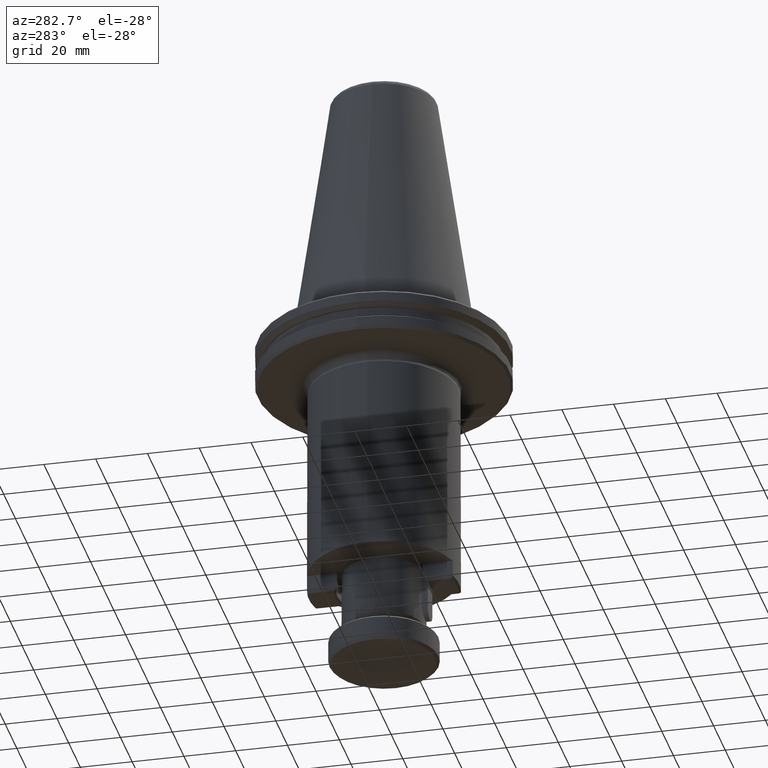
[diagram: clean part render]
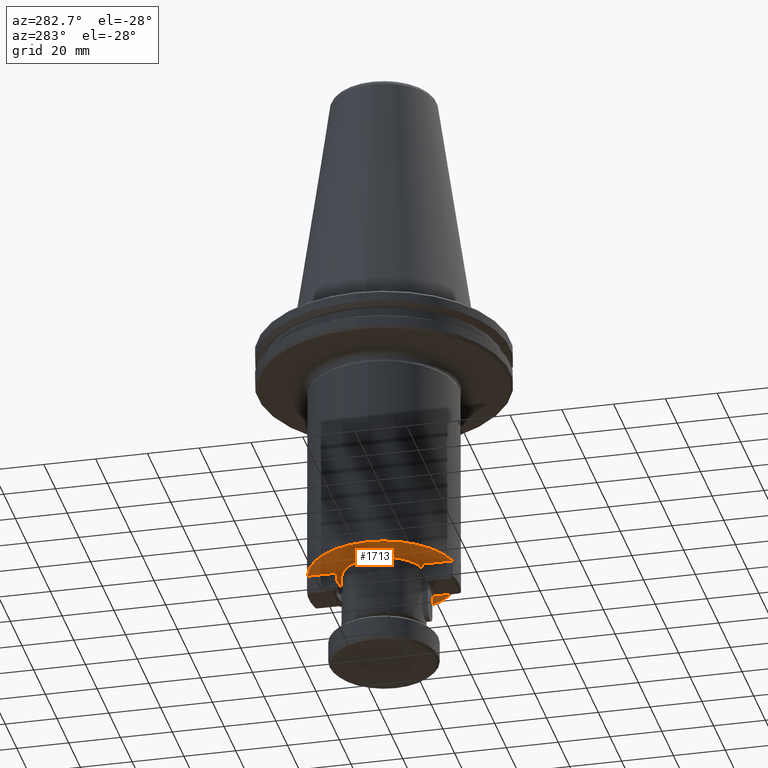
[diagram: same view with one face highlighted and labeled with its STEP entity id]
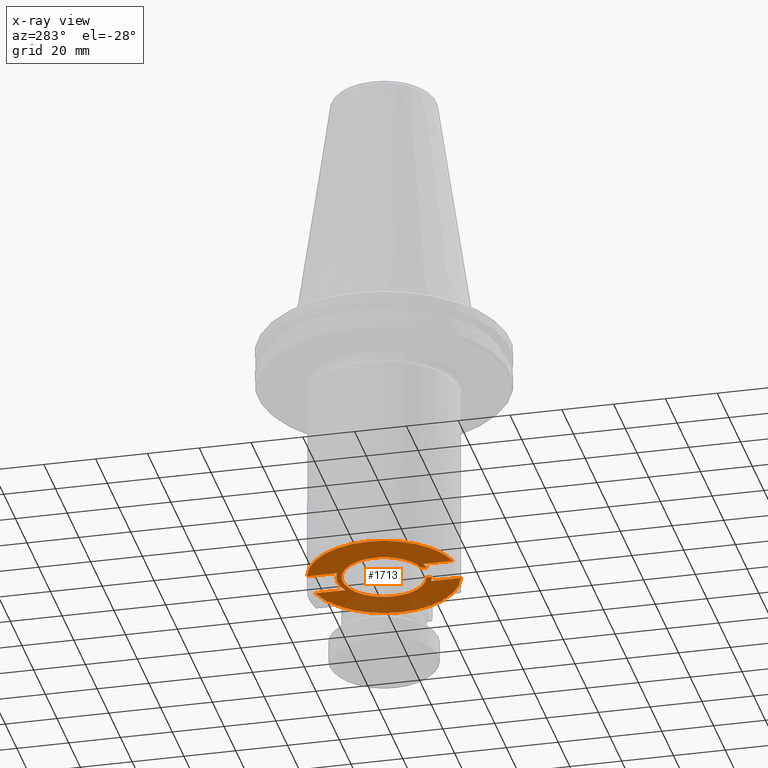
[diagram: x-ray of the same camera — body ghosted, the highlighted face saturated]
A machine part, auxiliary view. The second image highlights one B-rep face of the part: STEP entity #1713.
The next image is the same camera in x-ray: the body ghosted, the highlighted face saturated — about 24% of this face is hidden behind the body in this view.
In plain terms, the highlighted planar face has unit normal (0, -0, 1).
Its self-contained STEP definition (entity closure, byte-faithful):
#12 = AXIS2_PLACEMENT_3D ( 'NONE', #1360, #1717, #1556 ) ;
#69 = AXIS2_PLACEMENT_3D ( 'NONE', #463, #838, #89 ) ;
#89 = DIRECTION ( 'NONE',  ( 1.000000000000000000, 0.0000000000000000000, 0.0000000000000000000 ) ) ;
#121 = CIRCLE ( 'NONE', #12, 18.00000000000000400 ) ;
#129 = CARTESIAN_POINT ( 'NONE',  ( 75.78900745422477300, 111.8872747687010000, -2.000497217484769900 ) ) ;
#132 = CIRCLE ( 'NONE', #972, 16.00000000000000000 ) ;
#145 = CARTESIAN_POINT ( 'NONE',  ( 84.78900745828785500, 83.74478020874980200, -2.000497217484769900 ) ) ;
#154 = CIRCLE ( 'NONE', #545, 18.00000000000000400 ) ;
#253 = CIRCLE ( 'NONE', #1569, 28.99999999999999600 ) ;
#260 = DIRECTION ( 'NONE',  ( 1.000000000000000000, 0.0000000000000000000, 0.0000000000000000000 ) ) ;
#265 = VECTOR ( 'NONE', #943, 1000.000000000000000 ) ;
#290 = ORIENTED_EDGE ( 'NONE', *, *, #2293, .F. ) ;
#301 = LINE ( 'NONE', #1537, #265 ) ;
#302 = DIRECTION ( 'NONE',  ( 0.0000000000000000000, 1.000000000000000000, 0.0000000000000000000 ) ) ;
#338 = DIRECTION ( 'NONE',  ( 0.0000000000000000000, -0.0000000000000000000, 1.000000000000000000 ) ) ;
#342 = CARTESIAN_POINT ( 'NONE',  ( 91.78900745422477300, 111.8872747687010000, -2.000497217484769900 ) ) ;
#353 = EDGE_LOOP ( 'NONE', ( #968, #2484, #1968, #1678, #732, #1777, #290, #1263, #1955, #2087, #1899, #2397, #1708, #767, #1070, #1107 ) ) ;
#355 = EDGE_CURVE ( 'NONE', #853, #1139, #471, .T. ) ;
#391 = VERTEX_POINT ( 'NONE', #1852 ) ;
#405 = CARTESIAN_POINT ( 'NONE',  ( 98.78900745422480200, 111.8872747687010000, -2.000497217484769900 ) ) ;
#430 = CARTESIAN_POINT ( 'NONE',  ( 95.78900745422460300, 94.33734599391671300, -2.000497217484769900 ) ) ;
#445 = VECTOR ( 'NONE', #1718, 1000.000000000000000 ) ;
#463 = CARTESIAN_POINT ( 'NONE',  ( 91.78900745422478700, 111.8872747687010000, -2.000497217484769900 ) ) ;
#471 = CIRCLE ( 'NONE', #1076, 28.99999999999999600 ) ;
#488 = VERTEX_POINT ( 'NONE', #821 ) ;
#494 = CARTESIAN_POINT ( 'NONE',  ( 91.78900745422477300, 111.8872747687010000, -2.000497217484769900 ) ) ;
#522 = LINE ( 'NONE', #1673, #445 ) ;
#525 = CIRCLE ( 'NONE', #2155, 16.00000000000000000 ) ;
#545 = AXIS2_PLACEMENT_3D ( 'NONE', #1688, #1751, #1308 ) ;
#576 = EDGE_CURVE ( 'NONE', #2214, #1632, #301, .T. ) ;
#634 = CARTESIAN_POINT ( 'NONE',  ( 91.78900745422477300, 111.8872747687010000, -2.000497217484769900 ) ) ;
#644 = EDGE_CURVE ( 'NONE', #847, #488, #253, .T. ) ;
#712 = DIRECTION ( 'NONE',  ( -0.0000000000000000000, -0.0000000000000000000, 1.000000000000000000 ) ) ;
#732 = ORIENTED_EDGE ( 'NONE', *, *, #2373, .F. ) ;
#744 = CIRCLE ( 'NONE', #1210, 28.99999999999999600 ) ;
#757 = EDGE_CURVE ( 'NONE', #1632, #2178, #154, .T. ) ;
#767 = ORIENTED_EDGE ( 'NONE', *, *, #576, .F. ) ;
#779 = VECTOR ( 'NONE', #302, 1000.000000000000000 ) ;
#811 = EDGE_CURVE ( 'NONE', #391, #2137, #132, .T. ) ;
#821 = CARTESIAN_POINT ( 'NONE',  ( 98.78900745422480200, 140.0297693276415900, -2.000497217484769900 ) ) ;
#838 = DIRECTION ( 'NONE',  ( -0.0000000000000000000, -0.0000000000000000000, 1.000000000000000000 ) ) ;
#847 = VERTEX_POINT ( 'NONE', #2400 ) ;
#850 = LINE ( 'NONE', #405, #779 ) ;
#853 = VERTEX_POINT ( 'NONE', #1618 ) ;
#924 = DIRECTION ( 'NONE',  ( -0.0000000000000000000, -0.0000000000000000000, 1.000000000000000000 ) ) ;
#934 = DIRECTION ( 'NONE',  ( -0.0000000000000000000, -0.0000000000000000000, 1.000000000000000000 ) ) ;
#943 = DIRECTION ( 'NONE',  ( 0.0000000000000000000, 1.000000000000000000, 0.0000000000000000000 ) ) ;
#946 = CIRCLE ( 'NONE', #69, 18.00000000000000400 ) ;
#955 = CARTESIAN_POINT ( 'NONE',  ( 98.78900745393227100, 128.4703987206014800, -2.000497217484769900 ) ) ;
#961 = CARTESIAN_POINT ( 'NONE',  ( 62.78900745422477300, 111.8872747687010000, -2.000497217484769900 ) ) ;
#968 = ORIENTED_EDGE ( 'NONE', *, *, #2550, .F. ) ;
#972 = AXIS2_PLACEMENT_3D ( 'NONE', #2641, #934, #2576 ) ;
#976 = DIRECTION ( 'NONE',  ( 1.000000000000000000, 0.0000000000000000000, 0.0000000000000000000 ) ) ;
#983 = CARTESIAN_POINT ( 'NONE',  ( 87.78900745422458800, 94.33734599391679900, -2.000497217484769900 ) ) ;
#986 = VECTOR ( 'NONE', #1345, 1000.000000000000000 ) ;
#995 = CARTESIAN_POINT ( 'NONE',  ( 91.78900745422477300, 111.8872747687010000, -2.000497217484769900 ) ) ;
#1013 = LINE ( 'NONE', #1355, #986 ) ;
#1019 = CARTESIAN_POINT ( 'NONE',  ( 84.78900745422478700, 95.30415081635770500, -2.000497217484769900 ) ) ;
#1046 = CIRCLE ( 'NONE', #2203, 16.00000000000000000 ) ;
#1070 = ORIENTED_EDGE ( 'NONE', *, *, #1167, .F. ) ;
#1076 = AXIS2_PLACEMENT_3D ( 'NONE', #1726, #1737, #1783 ) ;
#1107 = ORIENTED_EDGE ( 'NONE', *, *, #355, .F. ) ;
#1132 = VERTEX_POINT ( 'NONE', #955 ) ;
#1139 = VERTEX_POINT ( 'NONE', #961 ) ;
#1159 = DIRECTION ( 'NONE',  ( -0.0000000000000000000, -0.0000000000000000000, 1.000000000000000000 ) ) ;
#1167 = EDGE_CURVE ( 'NONE', #1139, #2214, #2477, .T. ) ;
#1192 = CARTESIAN_POINT ( 'NONE',  ( 87.78900745422458800, 94.08727476870090800, -2.000497217484769900 ) ) ;
#1210 = AXIS2_PLACEMENT_3D ( 'NONE', #1579, #1533, #1425 ) ;
#1227 = VERTEX_POINT ( 'NONE', #2360 ) ;
#1241 = EDGE_CURVE ( 'NONE', #1132, #1227, #121, .T. ) ;
#1263 = ORIENTED_EDGE ( 'NONE', *, *, #1443, .T. ) ;
#1308 = DIRECTION ( 'NONE',  ( 1.000000000000000000, 0.0000000000000000000, 0.0000000000000000000 ) ) ;
#1345 = DIRECTION ( 'NONE',  ( 0.0000000000000000000, 1.000000000000000000, 0.0000000000000000000 ) ) ;
#1351 = DIRECTION ( 'NONE',  ( 0.0000000000000000000, 1.000000000000000000, 0.0000000000000000000 ) ) ;
#1355 = CARTESIAN_POINT ( 'NONE',  ( 98.78900745422480200, 128.4703987207009800, -2.000497217484769900 ) ) ;
#1360 = CARTESIAN_POINT ( 'NONE',  ( 91.78900745422478700, 111.8872747687010000, -2.000497217484769900 ) ) ;
#1397 = CARTESIAN_POINT ( 'NONE',  ( 107.7890074542247700, 111.8872747687010000, -2.000497217484769900 ) ) ;
#1425 = DIRECTION ( 'NONE',  ( 1.000000000000000000, 0.0000000000000000000, 0.0000000000000000000 ) ) ;
#1443 = EDGE_CURVE ( 'NONE', #1578, #391, #2191, .T. ) ;
#1533 = DIRECTION ( 'NONE',  ( -0.0000000000000000000, -0.0000000000000000000, 1.000000000000000000 ) ) ;
#1537 = CARTESIAN_POINT ( 'NONE',  ( 84.78900745422478700, 111.8872747687010000, -2.000497217484769900 ) ) ;
#1556 = DIRECTION ( 'NONE',  ( -1.000000000000000000, 0.0000000000000000000, 0.0000000000000000000 ) ) ;
#1569 = AXIS2_PLACEMENT_3D ( 'NONE', #494, #1159, #260 ) ;
#1578 = VERTEX_POINT ( 'NONE', #430 ) ;
#1579 = CARTESIAN_POINT ( 'NONE',  ( 91.78900745422477300, 111.8872747687010000, -2.000497217484769900 ) ) ;
#1614 = PLANE ( 'NONE',  #2114 ) ;
#1618 = CARTESIAN_POINT ( 'NONE',  ( 84.78900745422478700, 140.0297693276415900, -2.000497217484769900 ) ) ;
#1632 = VERTEX_POINT ( 'NONE', #1019 ) ;
#1673 = CARTESIAN_POINT ( 'NONE',  ( 84.78900745422478700, 128.4703987207009800, -2.000497217484769900 ) ) ;
#1678 = ORIENTED_EDGE ( 'NONE', *, *, #644, .F. ) ;
#1688 = CARTESIAN_POINT ( 'NONE',  ( 91.78900745422478700, 111.8872747687010000, -2.000497217484769900 ) ) ;
#1708 = ORIENTED_EDGE ( 'NONE', *, *, #757, .F. ) ;
#1710 = CARTESIAN_POINT ( 'NONE',  ( 98.78900745796536900, 83.74478021069084800, -2.000497217484769900 ) ) ;
#1713 = ADVANCED_FACE ( 'NONE', ( #1762 ), #1614, .F. ) ;
#1717 = DIRECTION ( 'NONE',  ( -0.0000000000000000000, -0.0000000000000000000, 1.000000000000000000 ) ) ;
#1718 = DIRECTION ( 'NONE',  ( 0.0000000000000000000, 1.000000000000000000, 0.0000000000000000000 ) ) ;
#1726 = CARTESIAN_POINT ( 'NONE',  ( 91.78900745422477300, 111.8872747687010000, -2.000497217484769900 ) ) ;
#1732 = LINE ( 'NONE', #1192, #1734 ) ;
#1734 = VECTOR ( 'NONE', #1351, 1000.000000000000000 ) ;
#1737 = DIRECTION ( 'NONE',  ( -0.0000000000000000000, -0.0000000000000000000, 1.000000000000000000 ) ) ;
#1743 = EDGE_CURVE ( 'NONE', #2178, #2526, #1732, .T. ) ;
#1751 = DIRECTION ( 'NONE',  ( -0.0000000000000000000, -0.0000000000000000000, 1.000000000000000000 ) ) ;
#1762 = FACE_OUTER_BOUND ( 'NONE', #353, .T. ) ;
#1777 = ORIENTED_EDGE ( 'NONE', *, *, #2321, .T. ) ;
#1783 = DIRECTION ( 'NONE',  ( 1.000000000000000000, 0.0000000000000000000, 0.0000000000000000000 ) ) ;
#1852 = CARTESIAN_POINT ( 'NONE',  ( 95.78900745312424200, 96.39534138358716600, -2.000497217484769900 ) ) ;
#1875 = DIRECTION ( 'NONE',  ( 1.000000000000000000, 0.0000000000000000000, 0.0000000000000000000 ) ) ;
#1899 = ORIENTED_EDGE ( 'NONE', *, *, #2247, .T. ) ;
#1955 = ORIENTED_EDGE ( 'NONE', *, *, #811, .T. ) ;
#1968 = ORIENTED_EDGE ( 'NONE', *, *, #2261, .T. ) ;
#1985 = CARTESIAN_POINT ( 'NONE',  ( 95.78900745422460300, 94.08727476870090800, -2.000497217484769900 ) ) ;
#2083 = CARTESIAN_POINT ( 'NONE',  ( 98.78900745422480200, 95.30415081594634300, -2.000497217484769900 ) ) ;
#2087 = ORIENTED_EDGE ( 'NONE', *, *, #2519, .T. ) ;
#2114 = AXIS2_PLACEMENT_3D ( 'NONE', #342, #338, #1875 ) ;
#2131 = VECTOR ( 'NONE', #2386, 1000.000000000000000 ) ;
#2137 = VERTEX_POINT ( 'NONE', #1397 ) ;
#2153 = AXIS2_PLACEMENT_3D ( 'NONE', #995, #924, #976 ) ;
#2155 = AXIS2_PLACEMENT_3D ( 'NONE', #634, #712, #2487 ) ;
#2178 = VERTEX_POINT ( 'NONE', #983 ) ;
#2191 = LINE ( 'NONE', #1985, #2131 ) ;
#2203 = AXIS2_PLACEMENT_3D ( 'NONE', #2313, #2284, #2271 ) ;
#2213 = VERTEX_POINT ( 'NONE', #129 ) ;
#2214 = VERTEX_POINT ( 'NONE', #145 ) ;
#2239 = VERTEX_POINT ( 'NONE', #1710 ) ;
#2247 = EDGE_CURVE ( 'NONE', #2213, #2526, #1046, .T. ) ;
#2261 = EDGE_CURVE ( 'NONE', #1132, #488, #1013, .T. ) ;
#2271 = DIRECTION ( 'NONE',  ( 1.000000000000000000, 0.0000000000000000000, 0.0000000000000000000 ) ) ;
#2284 = DIRECTION ( 'NONE',  ( -0.0000000000000000000, -0.0000000000000000000, 1.000000000000000000 ) ) ;
#2293 = EDGE_CURVE ( 'NONE', #1578, #2462, #946, .T. ) ;
#2313 = CARTESIAN_POINT ( 'NONE',  ( 91.78900745422477300, 111.8872747687010000, -2.000497217484769900 ) ) ;
#2321 = EDGE_CURVE ( 'NONE', #2239, #2462, #850, .T. ) ;
#2360 = CARTESIAN_POINT ( 'NONE',  ( 84.78900745422478700, 128.4703987205337500, -2.000497217484769900 ) ) ;
#2373 = EDGE_CURVE ( 'NONE', #2239, #847, #744, .T. ) ;
#2386 = DIRECTION ( 'NONE',  ( 0.0000000000000000000, 1.000000000000000000, 0.0000000000000000000 ) ) ;
#2397 = ORIENTED_EDGE ( 'NONE', *, *, #1743, .F. ) ;
#2400 = CARTESIAN_POINT ( 'NONE',  ( 120.7890074542247700, 111.8872747687010000, -2.000497217484769900 ) ) ;
#2462 = VERTEX_POINT ( 'NONE', #2083 ) ;
#2477 = CIRCLE ( 'NONE', #2153, 28.99999999999999600 ) ;
#2484 = ORIENTED_EDGE ( 'NONE', *, *, #1241, .F. ) ;
#2487 = DIRECTION ( 'NONE',  ( 1.000000000000000000, 0.0000000000000000000, 0.0000000000000000000 ) ) ;
#2498 = CARTESIAN_POINT ( 'NONE',  ( 87.78900745393424600, 96.39534138394634500, -2.000497217484769900 ) ) ;
#2519 = EDGE_CURVE ( 'NONE', #2137, #2213, #525, .T. ) ;
#2526 = VERTEX_POINT ( 'NONE', #2498 ) ;
#2550 = EDGE_CURVE ( 'NONE', #1227, #853, #522, .T. ) ;
#2576 = DIRECTION ( 'NONE',  ( 1.000000000000000000, 0.0000000000000000000, 0.0000000000000000000 ) ) ;
#2641 = CARTESIAN_POINT ( 'NONE',  ( 91.78900745422477300, 111.8872747687010000, -2.000497217484769900 ) ) ;